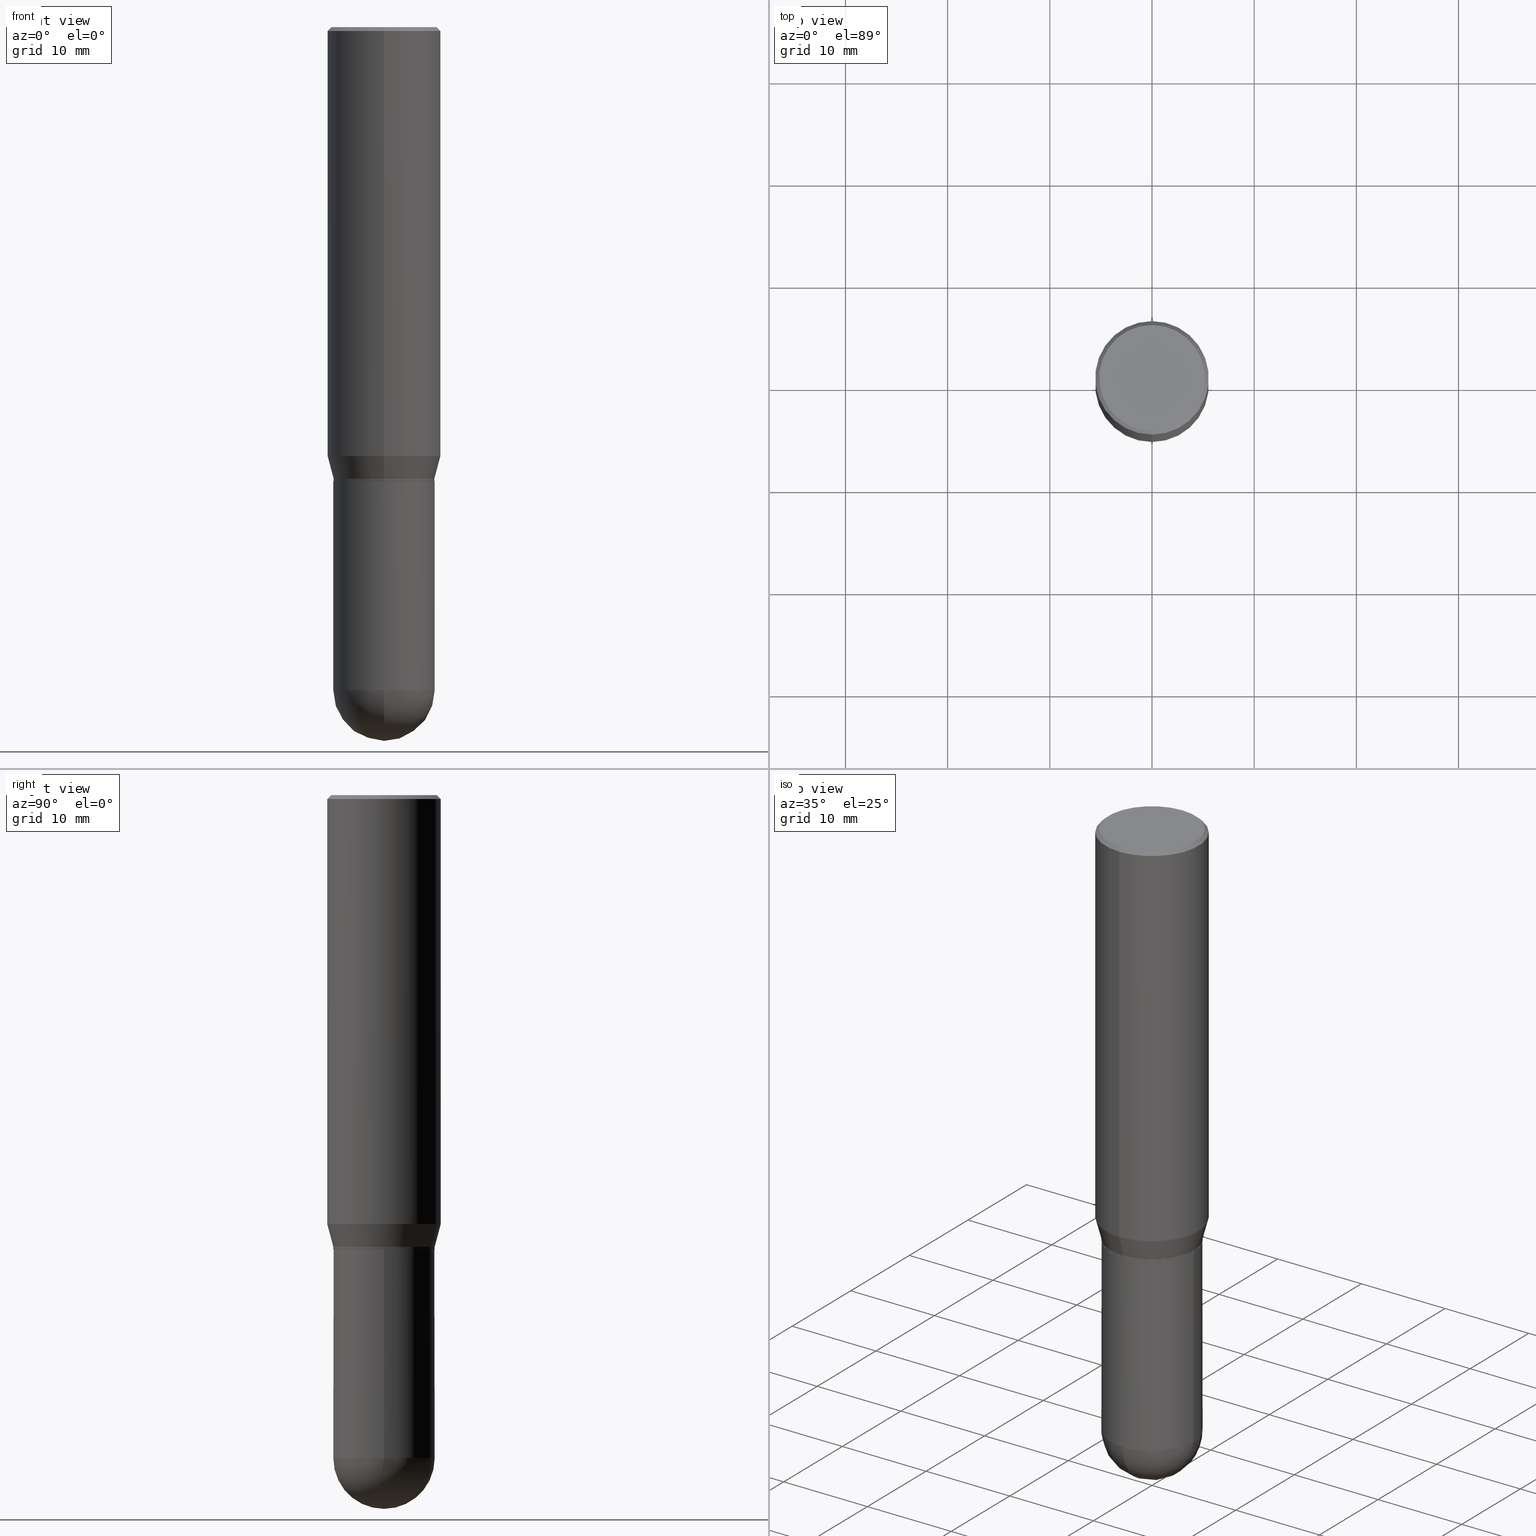
[diagram: canonical four-view strip — front | top / right | iso, engineering-drawing reading convention]
A machine part, canonical four-view strip (front | top / right | iso — engineering-drawing reading convention). The complete STEP part file that produces these views, byte-faithful:
ISO-10303-21;
HEADER;
FILE_DESCRIPTION (( 'STEP AP203' ),
    '1' );
FILE_NAME ('30055.STEP',
    '2024-03-08T15:17:19',
    ( '' ),
    ( '' ),
    'SwSTEP 2.0',
    'SolidWorks 2023',
    '' );
FILE_SCHEMA (( 'CONFIG_CONTROL_DESIGN' ));
ENDSEC;

DATA;
#1 = ORIENTED_EDGE ( 'NONE', *, *, #417, .F. ) ;
#2 = PERSON_AND_ORGANIZATION ( #326, #408 ) ;
#3 = FACE_OUTER_BOUND ( 'NONE', #59, .T. ) ;
#4 = DIRECTION ( 'NONE',  ( -2.445224538422357859E-29, 3.491831144182302259E-15, 1.000000000000000000 ) ) ;
#5 = EDGE_LOOP ( 'NONE', ( #204, #464, #263, #43 ) ) ;
#6 = PERSON_AND_ORGANIZATION ( #326, #408 ) ;
#7 = AXIS2_PLACEMENT_3D ( 'NONE', #249, #449, #50 ) ;
#8 = CARTESIAN_POINT ( 'NONE',  ( -1.387689962939413353E-15, -0.1953000000000089664, -2.554699999999999527 ) ) ;
#9 = CARTESIAN_POINT ( 'NONE',  ( -1.363772610952127300E-15, -0.1952999999999999181, 6.819546224588034390E-16 ) ) ;
#10 = EDGE_CURVE ( 'NONE', #393, #125, #422, .T. ) ;
#11 = FACE_OUTER_BOUND ( 'NONE', #383, .T. ) ;
#12 = DIRECTION ( 'NONE',  ( -2.445224538422357859E-29, 3.491831144182302259E-15, 1.000000000000000000 ) ) ;
#13 = AXIS2_PLACEMENT_3D ( 'NONE', #256, #330, #334 ) ;
#14 = ORIENTED_EDGE ( 'NONE', *, *, #76, .T. ) ;
#15 = APPROVAL ( #199, 'UNSPECIFIED' ) ;
#16 = LINE ( 'NONE', #284, #224 ) ;
#17 = ORIENTED_EDGE ( 'NONE', *, *, #60, .F. ) ;
#18 = CARTESIAN_POINT ( 'NONE',  ( -1.363772610952084702E-15, -0.1953000000000059688, -1.739999999999999547 ) ) ;
#19 = ADVANCED_FACE ( 'NONE', ( #61 ), #150, .T. ) ;
#20 = CARTESIAN_POINT ( 'NONE',  ( -1.449280202029235538E-15, -0.2037499999999999867, 5.543668214964218588E-16 ) ) ;
#21 = ORIENTED_EDGE ( 'NONE', *, *, #145, .F. ) ;
#22 = LOCAL_TIME ( 10, 17, 19.00000000000000000, #274 ) ;
#23 = FACE_OUTER_BOUND ( 'NONE', #243, .T. ) ;
#24 = EDGE_LOOP ( 'NONE', ( #495, #217, #312, #297 ) ) ;
#25 = DIRECTION ( 'NONE',  ( -2.445224538422357859E-29, 3.491831144182302653E-15, 1.000000000000000000 ) ) ;
#26 = CARTESIAN_POINT ( 'NONE',  ( 0.000000000000000000, 0.000000000000000000, 0.000000000000000000 ) ) ;
#27 = DIRECTION ( 'NONE',  ( -6.982962677686266711E-15, -1.000000000000000000, 2.804772067417107719E-15 ) ) ;
#28 = CIRCLE ( 'NONE', #460, 0.2037499999999999867 ) ;
#29 = CONICAL_SURFACE ( 'NONE', #242, 0.2187500000000000000, 0.7853981633974485010 ) ;
#30 = CARTESIAN_POINT ( 'NONE',  ( 3.667836807633575149E-31, -5.237746716273508633E-17, -0.01500000000000015730 ) ) ;
#31 = DIRECTION ( 'NONE',  ( -6.982962677686266711E-15, -1.000000000000000000, 2.797591391361254348E-15 ) ) ;
#32 = EDGE_CURVE ( 'NONE', #116, #101, #369, .T. ) ;
#33 = APPROVAL_DATE_TIME ( #391, #228 ) ;
#34 = DIRECTION ( 'NONE',  ( 2.445224538422357299E-29, -3.491831144182302653E-15, -1.000000000000000000 ) ) ;
#35 = EDGE_CURVE ( 'NONE', #318, #336, #225, .T. ) ;
#36 = PERSON_AND_ORGANIZATION ( #326, #408 ) ;
#37 = DIRECTION ( 'NONE',  ( -1.000000000000000000, 7.105427357601001070E-15, -4.926315508542082329E-29 ) ) ;
#38 = CALENDAR_DATE ( 2024, 8, 3 ) ;
#39 = FACE_OUTER_BOUND ( 'NONE', #461, .T. ) ;
#40 = ORIENTED_EDGE ( 'NONE', *, *, #300, .T. ) ;
#41 = ORIENTED_EDGE ( 'NONE', *, *, #181, .T. ) ;
#42 = DIRECTION ( 'NONE',  ( -1.000000000000000000, 6.982962677686266711E-15, -4.883557194083112901E-29 ) ) ;
#43 = ORIENTED_EDGE ( 'NONE', *, *, #137, .F. ) ;
#44 = COORDINATED_UNIVERSAL_TIME_OFFSET ( 5, 0, .BEHIND. ) ;
#45 = DIRECTION ( 'NONE',  ( -6.982962677686266711E-15, -1.000000000000000000, 3.491831144182302653E-15 ) ) ;
#46 = ADVANCED_FACE ( 'NONE', ( #183 ), #338, .T. ) ;
#47 = AXIS2_PLACEMENT_3D ( 'NONE', #88, #131, #353 ) ;
#48 = FACE_OUTER_BOUND ( 'NONE', #328, .T. ) ;
#49 = APPLICATION_CONTEXT ( 'configuration controlled 3d designs of mechanical parts and assemblies' ) ;
#50 = DIRECTION ( 'NONE',  ( -6.982962677686265133E-15, -1.000000000000000000, 3.746534391310989557E-15 ) ) ;
#51 = LINE ( 'NONE', #323, #295 ) ;
#52 = VERTEX_POINT ( 'NONE', #384 ) ;
#53 = FACE_OUTER_BOUND ( 'NONE', #5, .T. ) ;
#54 = AXIS2_PLACEMENT_3D ( 'NONE', #360, #362, #128 ) ;
#55 = ORIENTED_EDGE ( 'NONE', *, *, #76, .F. ) ;
#56 = DIMENSIONAL_EXPONENTS ( 1.000000000000000000, 0.000000000000000000, 0.000000000000000000, 0.000000000000000000, 0.000000000000000000, 0.000000000000000000, 0.000000000000000000 ) ;
#57 = CARTESIAN_POINT ( 'NONE',  ( 3.667836807633575149E-31, -5.237746716273508633E-17, -0.01500000000000015730 ) ) ;
#58 = DIRECTION ( 'NONE',  ( -2.445224538422357859E-29, 3.491831144182302259E-15, 1.000000000000000000 ) ) ;
#59 = EDGE_LOOP ( 'NONE', ( #403, #40, #456, #231, #373 ) ) ;
#60 = EDGE_CURVE ( 'NONE', #95, #299, #431, .T. ) ;
#61 = FACE_OUTER_BOUND ( 'NONE', #156, .T. ) ;
#62 = CONICAL_SURFACE ( 'NONE', #117, 0.1948000000000000287, 0.7853981633974824739 ) ;
#63 = AXIS2_PLACEMENT_3D ( 'NONE', #69, #58, #498 ) ;
#64 =( LENGTH_UNIT ( ) NAMED_UNIT ( * ) SI_UNIT ( $, .METRE. ) );
#65 = ORIENTED_EDGE ( 'NONE', *, *, #186, .F. ) ;
#66 = DIRECTION ( 'NONE',  ( -2.445468806185136597E-29, 3.491481338843145583E-15, 1.000000000000000000 ) ) ;
#67 = ORIENTED_EDGE ( 'NONE', *, *, #417, .T. ) ;
#68 = ADVANCED_FACE ( 'NONE', ( #427 ), #503, .T. ) ;
#69 = CARTESIAN_POINT ( 'NONE',  ( 4.277920329969914621E-29, -6.108958586746937238E-15, -1.749500000000000055 ) ) ;
#70 = ORIENTED_EDGE ( 'NONE', *, *, #484, .F. ) ;
#71 = VECTOR ( 'NONE', #171, 39.37007874015748143 ) ;
#72 = PRODUCT_DEFINITION_FORMATION_WITH_SPECIFIED_SOURCE ( 'ANY', '', #450, .NOT_KNOWN. ) ;
#73 = EDGE_CURVE ( 'NONE', #213, #412, #188, .T. ) ;
#74 = APPROVAL_STATUS ( 'not_yet_approved' ) ;
#75 = VERTEX_POINT ( 'NONE', #275 ) ;
#76 = EDGE_CURVE ( 'NONE', #101, #151, #370, .T. ) ;
#77 = APPROVAL_DATE_TIME ( #442, #15 ) ;
#78 = CARTESIAN_POINT ( 'NONE',  ( 3.841295513378218841E-45, -5.485449330667966736E-31, -1.570937741307224074E-16 ) ) ;
#79 = DATE_AND_TIME ( #281, #189 ) ;
#80 = DIRECTION ( 'NONE',  ( 6.982962677686266711E-15, 1.000000000000000000, -2.797591391361252376E-15 ) ) ;
#81 = CLOSED_SHELL ( 'NONE', ( #87, #192, #504, #197, #19, #446, #385, #311, #154, #316, #107, #480 ) ) ;
#82 = AXIS2_PLACEMENT_3D ( 'NONE', #169, #37, #482 ) ;
#83 = CIRCLE ( 'NONE', #314, 0.1953000000000000569 ) ;
#84 = PERSON_AND_ORGANIZATION_ROLE ( 'design_owner' ) ;
#85 = CARTESIAN_POINT ( 'NONE',  ( -1.527523085743830414E-15, -0.2187500000000058009, -1.652483408562509082 ) ) ;
#86 = EDGE_LOOP ( 'NONE', ( #153, #397, #144, #497 ) ) ;
#87 = ADVANCED_FACE ( 'NONE', ( #39 ), #405, .T. ) ;
#88 = CARTESIAN_POINT ( 'NONE',  ( 0.000000000000000000, 0.000000000000000000, 0.000000000000000000 ) ) ;
#89 = ADVANCED_FACE ( 'NONE', ( #3 ), #320, .T. ) ;
#90 = DIRECTION ( 'NONE',  ( -6.982962677686265922E-15, -1.000000000000000000, 3.491831144182302653E-15 ) ) ;
#91 = LINE ( 'NONE', #210, #71 ) ;
#92 = CONICAL_SURFACE ( 'NONE', #470, 0.1952999999999998904, 0.2617993877991504625 ) ;
#93 = DIRECTION ( 'NONE',  ( -2.445468806185136877E-29, 3.491481338843145188E-15, 1.000000000000000000 ) ) ;
#94 = CARTESIAN_POINT ( 'NONE',  ( -1.363772610952085885E-15, -0.1953000000000062186, -1.749499999999999389 ) ) ;
#95 = VERTEX_POINT ( 'NONE', #392 ) ;
#96 = DIRECTION ( 'NONE',  ( -1.807323732225331323E-15, -0.2588190451025183525, 0.9659258262890689783 ) ) ;
#97 = VECTOR ( 'NONE', #96, 39.37007874015748854 ) ;
#98 = CARTESIAN_POINT ( 'NONE',  ( -1.527523085743870449E-15, -0.2187500000000000000, 7.638380627898786315E-16 ) ) ;
#99 = ORIENTED_EDGE ( 'NONE', *, *, #211, .F. ) ;
#100 = APPLICATION_CONTEXT ( 'configuration controlled 3d designs of mechanical parts and assemblies' ) ;
#101 = VERTEX_POINT ( 'NONE', #401 ) ;
#102 = ORIENTED_EDGE ( 'NONE', *, *, #60, .T. ) ;
#103 = CARTESIAN_POINT ( 'NONE',  ( -1.500733937012521740E-15, -0.2187500000000000555, -0.01499999999999939403 ) ) ;
#104 = ORIENTED_EDGE ( 'NONE', *, *, #130, .T. ) ;
#105 = ADVANCED_BREP_SHAPE_REPRESENTATION ( '30055', ( #123, #132, #288 ), #168 ) ;
#106 = CIRCLE ( 'NONE', #82, 0.1953000000000000291 ) ;
#107 = ADVANCED_FACE ( 'NONE', ( #473 ), #143, .T. ) ;
#108 = CC_DESIGN_APPROVAL ( #110, ( #120 ) ) ;
#109 = DIRECTION ( 'NONE',  ( -2.445224538422357859E-29, 3.491831144182302259E-15, 1.000000000000000000 ) ) ;
#110 = APPROVAL ( #115, 'UNSPECIFIED' ) ;
#111 = CARTESIAN_POINT ( 'NONE',  ( 4.279142942239125763E-29, -6.110704502319029052E-15, -1.750000000000000000 ) ) ;
#112 = DIRECTION ( 'NONE',  ( -6.982962677686266711E-15, -1.000000000000000000, 2.804772067417107719E-15 ) ) ;
#113 = EDGE_LOOP ( 'NONE', ( #255, #230, #340, #310 ) ) ;
#114 = EDGE_CURVE ( 'NONE', #233, #507, #208, .T. ) ;
#115 = APPROVAL_STATUS ( 'not_yet_approved' ) ;
#116 = VERTEX_POINT ( 'NONE', #8 ) ;
#117 = AXIS2_PLACEMENT_3D ( 'NONE', #238, #396, #136 ) ;
#118 = APPROVAL_DATE_TIME ( #79, #110 ) ;
#119 = SPHERICAL_SURFACE ( 'NONE', #134, 0.1953000000000000291 ) ;
#120 = PRODUCT_DEFINITION ( 'UNKNOWN', '', #72, #139 ) ;
#121 = PERSON_AND_ORGANIZATION ( #326, #408 ) ;
#122 = DIRECTION ( 'NONE',  ( -6.982962677686265133E-15, -1.000000000000000000, 3.491831144182301864E-15 ) ) ;
#123 = MANIFOLD_SOLID_BREP ( 'Body-Move/Copy2[1]', #178 ) ;
#124 = CARTESIAN_POINT ( 'NONE',  ( 1.422778645578576487E-15, 0.2037499999999999867, -7.900074826925052850E-16 ) ) ;
#125 = VERTEX_POINT ( 'NONE', #166 ) ;
#126 = AXIS2_PLACEMENT_3D ( 'NONE', #374, #294, #491 ) ;
#127 = DATE_TIME_ROLE ( 'creation_date' ) ;
#128 = DIRECTION ( 'NONE',  ( -6.982962677686266711E-15, -1.000000000000000000, 2.804772067417107719E-15 ) ) ;
#129 = PRODUCT_RELATED_PRODUCT_CATEGORY ( 'detail', '', ( #450 ) ) ;
#130 = EDGE_CURVE ( 'NONE', #75, #336, #510, .T. ) ;
#131 = DIRECTION ( 'NONE',  ( -2.445468806185136597E-29, 3.491481338843145583E-15, 1.000000000000000000 ) ) ;
#132 = MANIFOLD_SOLID_BREP ( 'Body-Move/Copy2[2]', #81 ) ;
#133 = CARTESIAN_POINT ( 'NONE',  ( -1.363772610952084702E-15, -0.1953000000000059688, -1.739999999999999547 ) ) ;
#134 = AXIS2_PLACEMENT_3D ( 'NONE', #240, #42, #80 ) ;
#135 = VECTOR ( 'NONE', #462, 39.37007874015748143 ) ;
#136 = DIRECTION ( 'NONE',  ( -6.982962677686266711E-15, -1.000000000000000000, 2.804772067417107719E-15 ) ) ;
#137 = EDGE_CURVE ( 'NONE', #125, #448, #493, .T. ) ;
#138 = DIRECTION ( 'NONE',  ( 1.000000000000000000, -6.982962677686265922E-15, 4.883557194083112340E-29 ) ) ;
#139 = DESIGN_CONTEXT ( 'detailed design', #100, 'design' ) ;
#140 = CARTESIAN_POINT ( 'NONE',  ( 4.254690696854903488E-29, -6.075786190877206191E-15, -1.739999999999999991 ) ) ;
#141 = AXIS2_PLACEMENT_3D ( 'NONE', #185, #66, #191 ) ;
#142 = DIRECTION ( 'NONE',  ( 2.445224538422357859E-29, -3.491831144182302259E-15, -1.000000000000000000 ) ) ;
#143 = CONICAL_SURFACE ( 'NONE', #54, 0.1948000000000000287, 0.7853981633974824739 ) ;
#144 = ORIENTED_EDGE ( 'NONE', *, *, #324, .F. ) ;
#145 = EDGE_CURVE ( 'NONE', #52, #116, #106, .T. ) ;
#146 = VERTEX_POINT ( 'NONE', #194 ) ;
#147 = APPLICATION_PROTOCOL_DEFINITION ( 'international standard', 'config_control_design', 1994, #49 ) ;
#148 = ORIENTED_EDGE ( 'NONE', *, *, #331, .F. ) ;
#149 = VERTEX_POINT ( 'NONE', #85 ) ;
#150 = CONICAL_SURFACE ( 'NONE', #363, 0.1952999999999998904, 0.2617993877991504625 ) ;
#151 = VERTEX_POINT ( 'NONE', #282 ) ;
#152 = DIRECTION ( 'NONE',  ( -6.982962677686266711E-15, -1.000000000000000000, 2.797591391361254348E-15 ) ) ;
#153 = ORIENTED_EDGE ( 'NONE', *, *, #441, .T. ) ;
#154 = ADVANCED_FACE ( 'NONE', ( #283 ), #315, .F. ) ;
#155 = CARTESIAN_POINT ( 'NONE',  ( -1.527523085743870054E-15, -0.2187500000000000555, -0.01499999999999939403 ) ) ;
#156 = EDGE_LOOP ( 'NONE', ( #457, #506, #65, #272 ) ) ;
#157 = SECURITY_CLASSIFICATION_LEVEL ( 'unclassified' ) ;
#158 = DIRECTION ( 'NONE',  ( 1.000000000000000000, -6.982962677686267499E-15, 0.000000000000000000 ) ) ;
#159 = EDGE_CURVE ( 'NONE', #507, #233, #28, .T. ) ;
#160 = SECURITY_CLASSIFICATION ( '', '', #157 ) ;
#161 = PERSON_AND_ORGANIZATION_ROLE ( 'classification_officer' ) ;
#162 = CARTESIAN_POINT ( 'NONE',  ( 4.279570410823988484E-29, -6.110092342975504671E-15, -1.750000000000000000 ) ) ;
#163 = CARTESIAN_POINT ( 'NONE',  ( 6.247439159161168638E-29, -8.919687376342582955E-15, -2.554699999999999971 ) ) ;
#164 = EDGE_LOOP ( 'NONE', ( #67, #293, #400, #333, #14 ) ) ;
#165 = ADVANCED_FACE ( 'NONE', ( #509 ), #119, .T. ) ;
#166 = CARTESIAN_POINT ( 'NONE',  ( 1.554312234475259191E-15, 0.2187499999999998890, -0.01500000000000092232 ) ) ;
#167 = AXIS2_PLACEMENT_3D ( 'NONE', #57, #142, #410 ) ;
#168 =( GEOMETRIC_REPRESENTATION_CONTEXT ( 3 ) GLOBAL_UNCERTAINTY_ASSIGNED_CONTEXT ( ( #339 ) ) GLOBAL_UNIT_ASSIGNED_CONTEXT ( ( #335, #382, #298 ) ) REPRESENTATION_CONTEXT ( 'NONE', 'WORKASPACE' ) );
#169 = CARTESIAN_POINT ( 'NONE',  ( 6.252116918762979989E-29, -8.912988558351247541E-15, -2.554699999999999971 ) ) ;
#170 = CARTESIAN_POINT ( 'NONE',  ( -0.1953000000000000569, -6.127199896719566760E-15, -2.554699999999999971 ) ) ;
#171 = DIRECTION ( 'NONE',  ( 4.937700262164548831E-15, 0.7071067811865452413, -0.7071067811865497932 ) ) ;
#172 = ORIENTED_EDGE ( 'NONE', *, *, #239, .F. ) ;
#173 = CC_DESIGN_PERSON_AND_ORGANIZATION_ASSIGNMENT ( #6, #161, ( #160 ) ) ;
#174 = CIRCLE ( 'NONE', #364, 0.1953000000000000291 ) ;
#175 = CARTESIAN_POINT ( 'NONE',  ( 6.252116918762979989E-29, -8.912988558351247541E-15, -2.554699999999999971 ) ) ;
#176 = CARTESIAN_POINT ( 'NONE',  ( -1.360281129613242089E-15, -0.1948000000000061349, -1.749999999999999334 ) ) ;
#177 = DIRECTION ( 'NONE',  ( -6.982962677686265133E-15, -1.000000000000000000, 3.492862791899308071E-15 ) ) ;
#178 = CLOSED_SHELL ( 'NONE', ( #46, #68, #463, #165, #89 ) ) ;
#179 = AXIS2_PLACEMENT_3D ( 'NONE', #436, #478, #440 ) ;
#180 = EDGE_LOOP ( 'NONE', ( #358, #237 ) ) ;
#181 = EDGE_CURVE ( 'NONE', #336, #75, #250, .T. ) ;
#182 = DIRECTION ( 'NONE',  ( -2.445224538422357859E-29, 3.491831144182302259E-15, 1.000000000000000000 ) ) ;
#183 = FACE_OUTER_BOUND ( 'NONE', #164, .T. ) ;
#184 = CARTESIAN_POINT ( 'NONE',  ( 1.471001098707388140E-15, 0.1952999999999938119, -1.740000000000000657 ) ) ;
#185 = CARTESIAN_POINT ( 'NONE',  ( 6.247439159161168638E-29, -8.919687376342582955E-15, -2.554699999999999971 ) ) ;
#186 = EDGE_CURVE ( 'NONE', #149, #393, #439, .T. ) ;
#187 = DIRECTION ( 'NONE',  ( 0.000000000000000000, 0.000000000000000000, 1.000000000000000000 ) ) ;
#188 = CIRCLE ( 'NONE', #415, 0.1952999999999998904 ) ;
#189 = LOCAL_TIME ( 10, 17, 19.00000000000000000, #404 ) ;
#190 = DIRECTION ( 'NONE',  ( -6.982962677686266711E-15, -1.000000000000000000, 3.491831144182302653E-15 ) ) ;
#191 = DIRECTION ( 'NONE',  ( 1.000000000000000000, -6.982962677686266711E-15, 0.000000000000000000 ) ) ;
#192 = ADVANCED_FACE ( 'NONE', ( #471 ), #62, .T. ) ;
#193 = SHAPE_DEFINITION_REPRESENTATION ( #248, #105 ) ;
#194 = CARTESIAN_POINT ( 'NONE',  ( 1.387689962939516891E-15, 0.1952999999999937009, -1.749500000000000499 ) ) ;
#195 = COORDINATED_UNIVERSAL_TIME_OFFSET ( 5, 0, .BEHIND. ) ;
#196 = DIRECTION ( 'NONE',  ( -2.445224538422357859E-29, 3.491831144182302259E-15, 1.000000000000000000 ) ) ;
#197 = ADVANCED_FACE ( 'NONE', ( #254 ), #365, .T. ) ;
#198 = AXIS2_PLACEMENT_3D ( 'NONE', #265, #182, #112 ) ;
#199 = APPROVAL_STATUS ( 'not_yet_approved' ) ;
#200 = CARTESIAN_POINT ( 'NONE',  ( 4.279570410823988484E-29, -6.110092342975504671E-15, -1.750000000000000000 ) ) ;
#201 = EDGE_CURVE ( 'NONE', #146, #412, #16, .T. ) ;
#202 = EDGE_LOOP ( 'NONE', ( #414, #342, #172, #390 ) ) ;
#203 = DIRECTION ( 'NONE',  ( -6.982962677686265133E-15, -1.000000000000000000, 3.746534391310989557E-15 ) ) ;
#204 = ORIENTED_EDGE ( 'NONE', *, *, #10, .F. ) ;
#205 = MECHANICAL_CONTEXT ( 'NONE', #49, 'mechanical' ) ;
#206 = CARTESIAN_POINT ( 'NONE',  ( 3.841295513378218841E-45, -5.485449330667966736E-31, -1.570937741307224074E-16 ) ) ;
#207 = VECTOR ( 'NONE', #379, 39.37007874015748143 ) ;
#208 = CIRCLE ( 'NONE', #469, 0.2037499999999999867 ) ;
#209 = CARTESIAN_POINT ( 'NONE',  ( -0.1953000000000000291, -6.127199896719567549E-15, -1.750000000000000000 ) ) ;
#210 = CARTESIAN_POINT ( 'NONE',  ( 1.527523085743871040E-15, 0.2187499999999999167, -0.01500000000000092232 ) ) ;
#211 = EDGE_CURVE ( 'NONE', #262, #213, #219, .T. ) ;
#212 = CYLINDRICAL_SURFACE ( 'NONE', #500, 0.2187500000000000000 ) ;
#213 = VERTEX_POINT ( 'NONE', #18 ) ;
#214 = CONICAL_SURFACE ( 'NONE', #167, 0.2187500000000000000, 0.7853981633974485010 ) ;
#215 = CC_DESIGN_APPROVAL ( #15, ( #72 ) ) ;
#216 = DIRECTION ( 'NONE',  ( -2.445224538422357859E-29, 3.491831144182302259E-15, 1.000000000000000000 ) ) ;
#217 = ORIENTED_EDGE ( 'NONE', *, *, #411, .T. ) ;
#218 = CC_DESIGN_PERSON_AND_ORGANIZATION_ASSIGNMENT ( #36, #309, ( #120 ) ) ;
#219 = LINE ( 'NONE', #9, #511 ) ;
#220 = EDGE_LOOP ( 'NONE', ( #104, #41 ) ) ;
#221 = DIRECTION ( 'NONE',  ( 6.982962677686265133E-15, 1.000000000000000000, -3.492862791899308071E-15 ) ) ;
#222 = ORIENTED_EDGE ( 'NONE', *, *, #484, .T. ) ;
#223 = DIRECTION ( 'NONE',  ( 1.000000000000000000, -6.982962677686266711E-15, 0.000000000000000000 ) ) ;
#224 = VECTOR ( 'NONE', #447, 39.37007874015748143 ) ;
#225 = LINE ( 'NONE', #305, #207 ) ;
#226 = LENGTH_MEASURE_WITH_UNIT ( LENGTH_MEASURE( 0.02539999999999999897 ), #64 );
#227 = DIRECTION ( 'NONE',  ( 1.000000000000000000, -6.982962677686266711E-15, 4.876176775795935793E-29 ) ) ;
#228 = APPROVAL ( #74, 'UNSPECIFIED' ) ;
#229 = LINE ( 'NONE', #103, #371 ) ;
#230 = ORIENTED_EDGE ( 'NONE', *, *, #428, .T. ) ;
#231 = ORIENTED_EDGE ( 'NONE', *, *, #252, .T. ) ;
#232 = LINE ( 'NONE', #98, #135 ) ;
#233 = VERTEX_POINT ( 'NONE', #366 ) ;
#234 = AXIS2_PLACEMENT_3D ( 'NONE', #332, #451, #90 ) ;
#235 = APPROVAL_ROLE ( '' ) ;
#236 = DIRECTION ( 'NONE',  ( 1.000000000000000000, -6.982962677686266711E-15, 0.000000000000000000 ) ) ;
#237 = ORIENTED_EDGE ( 'NONE', *, *, #159, .T. ) ;
#238 = CARTESIAN_POINT ( 'NONE',  ( 4.279142942239125763E-29, -6.110704502319029052E-15, -1.750000000000000000 ) ) ;
#239 = EDGE_CURVE ( 'NONE', #448, #125, #352, .T. ) ;
#240 = CARTESIAN_POINT ( 'NONE',  ( 6.252116918762979989E-29, -8.912988558351247541E-15, -2.554699999999999971 ) ) ;
#241 = AXIS2_PLACEMENT_3D ( 'NONE', #372, #216, #177 ) ;
#242 = AXIS2_PLACEMENT_3D ( 'NONE', #30, #419, #221 ) ;
#243 = EDGE_LOOP ( 'NONE', ( #481, #222, #476, #468 ) ) ;
#244 = PERSON_AND_ORGANIZATION ( #326, #408 ) ;
#245 = ORIENTED_EDGE ( 'NONE', *, *, #73, .F. ) ;
#246 = PERSON_AND_ORGANIZATION_ROLE ( 'creator' ) ;
#247 = DIRECTION ( 'NONE',  ( 6.982962677686266711E-15, 1.000000000000000000, -2.797591391361252376E-15 ) ) ;
#248 = PRODUCT_DEFINITION_SHAPE ( 'NONE', 'NONE',  #120 ) ;
#249 = CARTESIAN_POINT ( 'NONE',  ( 4.040692979952868380E-29, -5.770193031263100651E-15, -1.652483408562509748 ) ) ;
#250 = CIRCLE ( 'NONE', #321, 0.1953000000000000291 ) ;
#251 = CIRCLE ( 'NONE', #344, 0.1952999999999998904 ) ;
#252 = EDGE_CURVE ( 'NONE', #101, #75, #418, .T. ) ;
#253 = LINE ( 'NONE', #406, #398 ) ;
#254 = FACE_OUTER_BOUND ( 'NONE', #202, .T. ) ;
#255 = ORIENTED_EDGE ( 'NONE', *, *, #201, .F. ) ;
#256 = CARTESIAN_POINT ( 'NONE',  ( 6.247439159161168638E-29, -8.919687376342582955E-15, -2.554699999999999971 ) ) ;
#257 = EDGE_LOOP ( 'NONE', ( #148, #102, #348, #386 ) ) ;
#258 = AXIS2_PLACEMENT_3D ( 'NONE', #124, #34, #350 ) ;
#259 = VECTOR ( 'NONE', #425, 39.37007874015748854 ) ;
#260 = CARTESIAN_POINT ( 'NONE',  ( 4.277920329969914621E-29, -6.108958586746937238E-15, -1.749500000000000055 ) ) ;
#261 = DIRECTION ( 'NONE',  ( -2.445224538422357859E-29, 3.491831144182302259E-15, 1.000000000000000000 ) ) ;
#262 = VERTEX_POINT ( 'NONE', #94 ) ;
#263 = ORIENTED_EDGE ( 'NONE', *, *, #474, .T. ) ;
#264 = CIRCLE ( 'NONE', #7, 0.2187500000000000000 ) ;
#265 = CARTESIAN_POINT ( 'NONE',  ( 4.279142942239125763E-29, -6.110704502319029052E-15, -1.750000000000000000 ) ) ;
#266 = CC_DESIGN_DATE_AND_TIME_ASSIGNMENT ( #276, #127, ( #120 ) ) ;
#267 = CARTESIAN_POINT ( 'NONE',  ( 0.000000000000000000, 0.000000000000000000, 0.000000000000000000 ) ) ;
#268 = DIRECTION ( 'NONE',  ( -2.445224538422357859E-29, 3.491831144182302259E-15, 1.000000000000000000 ) ) ;
#269 = DIRECTION ( 'NONE',  ( -2.445224538422357859E-29, 3.491831144182302259E-15, 1.000000000000000000 ) ) ;
#270 = ORIENTED_EDGE ( 'NONE', *, *, #201, .T. ) ;
#271 = CALENDAR_DATE ( 2024, 8, 3 ) ;
#272 = ORIENTED_EDGE ( 'NONE', *, *, #290, .F. ) ;
#273 = DIRECTION ( 'NONE',  ( 1.000000000000000000, -6.982962677686267499E-15, 0.000000000000000000 ) ) ;
#274 = COORDINATED_UNIVERSAL_TIME_OFFSET ( 5, 0, .BEHIND. ) ;
#275 = CARTESIAN_POINT ( 'NONE',  ( 0.1953000000000000291, -7.473864953927632957E-15, -1.750000000000000000 ) ) ;
#276 = DATE_AND_TIME ( #359, #494 ) ;
#277 = DIRECTION ( 'NONE',  ( -2.445224538422357859E-29, 3.491831144182302259E-15, 1.000000000000000000 ) ) ;
#278 = AXIS2_PLACEMENT_3D ( 'NONE', #313, #443, #203 ) ;
#279 = CC_DESIGN_APPROVAL ( #228, ( #160 ) ) ;
#280 = ORIENTED_EDGE ( 'NONE', *, *, #137, .T. ) ;
#281 = CALENDAR_DATE ( 2024, 8, 3 ) ;
#282 = CARTESIAN_POINT ( 'NONE',  ( 1.363772610952190606E-15, 0.1952999999999911473, -2.554700000000000415 ) ) ;
#283 = FACE_OUTER_BOUND ( 'NONE', #180, .T. ) ;
#284 = CARTESIAN_POINT ( 'NONE',  ( 1.387689962939474884E-15, 0.1952999999999999181, -6.819546224588034390E-16 ) ) ;
#285 = VECTOR ( 'NONE', #25, 39.37007874015748143 ) ;
#286 = AXIS2_PLACEMENT_3D ( 'NONE', #308, #322, #247 ) ;
#287 = AXIS2_PLACEMENT_3D ( 'NONE', #505, #302, #429 ) ;
#288 = AXIS2_PLACEMENT_3D ( 'NONE', #26, #187, #319 ) ;
#289 = CARTESIAN_POINT ( 'NONE',  ( 0.1953000000000000291, -1.363772610952128089E-15, 9.523173243129463579E-30 ) ) ;
#290 = EDGE_CURVE ( 'NONE', #213, #149, #409, .T. ) ;
#291 = DIRECTION ( 'NONE',  ( 6.982962677686266711E-15, 1.000000000000000000, 0.000000000000000000 ) ) ;
#292 = CC_DESIGN_PERSON_AND_ORGANIZATION_ASSIGNMENT ( #2, #84, ( #450 ) ) ;
#293 = ORIENTED_EDGE ( 'NONE', *, *, #35, .T. ) ;
#294 = DIRECTION ( 'NONE',  ( -2.445224538422357859E-29, 3.491831144182302259E-15, 1.000000000000000000 ) ) ;
#295 = VECTOR ( 'NONE', #488, 39.37007874015748854 ) ;
#296 = PLANE ( 'NONE',  #234 ) ;
#297 = ORIENTED_EDGE ( 'NONE', *, *, #325, .F. ) ;
#298 =( NAMED_UNIT ( * ) SI_UNIT ( $, .STERADIAN. ) SOLID_ANGLE_UNIT ( ) );
#299 = VERTEX_POINT ( 'NONE', #176 ) ;
#300 = EDGE_CURVE ( 'NONE', #318, #116, #387, .T. ) ;
#301 = ORIENTED_EDGE ( 'NONE', *, *, #145, .T. ) ;
#302 = DIRECTION ( 'NONE',  ( 2.438088387897960049E-29, -3.491481338843145188E-15, -1.000000000000000000 ) ) ;
#303 = DIRECTION ( 'NONE',  ( -2.445224538422357859E-29, 3.491831144182302259E-15, 1.000000000000000000 ) ) ;
#304 = AXIS2_PLACEMENT_3D ( 'NONE', #399, #438, #45 ) ;
#305 = CARTESIAN_POINT ( 'NONE',  ( -0.1953000000000000291, 1.387689962939475870E-15, -9.606680231267831797E-30 ) ) ;
#306 = FACE_OUTER_BOUND ( 'NONE', #220, .T. ) ;
#307 = CC_DESIGN_DATE_AND_TIME_ASSIGNMENT ( #356, #432, ( #160 ) ) ;
#308 = CARTESIAN_POINT ( 'NONE',  ( 6.252116918762979989E-29, -8.912988558351247541E-15, -2.554699999999999971 ) ) ;
#309 = PERSON_AND_ORGANIZATION_ROLE ( 'creator' ) ;
#310 = ORIENTED_EDGE ( 'NONE', *, *, #411, .F. ) ;
#311 = ADVANCED_FACE ( 'NONE', ( #11 ), #214, .T. ) ;
#312 = ORIENTED_EDGE ( 'NONE', *, *, #290, .T. ) ;
#313 = CARTESIAN_POINT ( 'NONE',  ( 4.040692979952868380E-29, -5.770193031263100651E-15, -1.652483408562509748 ) ) ;
#314 = AXIS2_PLACEMENT_3D ( 'NONE', #455, #502, #223 ) ;
#315 = PLANE ( 'NONE',  #258 ) ;
#316 = ADVANCED_FACE ( 'NONE', ( #48 ), #296, .F. ) ;
#317 = DIRECTION ( 'NONE',  ( -6.982962677686265133E-15, -1.000000000000000000, 3.491831144182301864E-15 ) ) ;
#318 = VERTEX_POINT ( 'NONE', #170 ) ;
#319 = DIRECTION ( 'NONE',  ( 1.000000000000000000, 0.000000000000000000, 0.000000000000000000 ) ) ;
#320 = CYLINDRICAL_SURFACE ( 'NONE', #47, 0.1953000000000000291 ) ;
#321 = AXIS2_PLACEMENT_3D ( 'NONE', #162, #357, #158 ) ;
#322 = DIRECTION ( 'NONE',  ( -1.000000000000000000, 6.982962677686266711E-15, -4.883557194083112901E-29 ) ) ;
#323 = CARTESIAN_POINT ( 'NONE',  ( 1.387689962939517088E-15, 0.1952999999999938119, -1.740000000000000657 ) ) ;
#324 = EDGE_CURVE ( 'NONE', #262, #146, #329, .T. ) ;
#325 = EDGE_CURVE ( 'NONE', #393, #149, #264, .T. ) ;
#326 = PERSON ( 'UNSPECIFIED', 'UNSPECIFIED', 'UNSPECIFIED', ('UNSPECIFIED'), ('UNSPECIFIED'), ('UNSPECIFIED') ) ;
#327 = CARTESIAN_POINT ( 'NONE',  ( 0.000000000000000000, 0.000000000000000000, 0.000000000000000000 ) ) ;
#328 = EDGE_LOOP ( 'NONE', ( #492, #17 ) ) ;
#329 = CIRCLE ( 'NONE', #486, 0.1952999999999999736 ) ;
#330 = DIRECTION ( 'NONE',  ( -2.445468806185136597E-29, 3.491481338843145583E-15, 1.000000000000000000 ) ) ;
#331 = EDGE_CURVE ( 'NONE', #95, #146, #253, .T. ) ;
#332 = CARTESIAN_POINT ( 'NONE',  ( 4.279142942239125763E-29, -6.110704502319029052E-15, -1.750000000000000000 ) ) ;
#333 = ORIENTED_EDGE ( 'NONE', *, *, #252, .F. ) ;
#334 = DIRECTION ( 'NONE',  ( 1.000000000000000000, -6.982962677686266711E-15, 0.000000000000000000 ) ) ;
#335 =( CONVERSION_BASED_UNIT ( 'INCH', #226 ) LENGTH_UNIT ( ) NAMED_UNIT ( #56 ) );
#336 = VERTEX_POINT ( 'NONE', #209 ) ;
#337 = PLANE ( 'NONE',  #287 ) ;
#338 = CYLINDRICAL_SURFACE ( 'NONE', #377, 0.1953000000000000291 ) ;
#339 = UNCERTAINTY_MEASURE_WITH_UNIT (LENGTH_MEASURE( 1.000000000000000082E-05 ), #335, 'distance_accuracy_value', 'NONE');
#340 = ORIENTED_EDGE ( 'NONE', *, *, #211, .T. ) ;
#341 = DIRECTION ( 'NONE',  ( -6.982962677686266711E-15, -1.000000000000000000, 2.797591391361254348E-15 ) ) ;
#342 = ORIENTED_EDGE ( 'NONE', *, *, #10, .T. ) ;
#343 = CARTESIAN_POINT ( 'NONE',  ( -1.360281129613242089E-15, -0.1948000000000061349, -1.749999999999999334 ) ) ;
#344 = AXIS2_PLACEMENT_3D ( 'NONE', #140, #109, #341 ) ;
#345 = CARTESIAN_POINT ( 'NONE',  ( 4.254690696854903488E-29, -6.075786190877206191E-15, -1.739999999999999991 ) ) ;
#346 = FACE_OUTER_BOUND ( 'NONE', #113, .T. ) ;
#347 = EDGE_LOOP ( 'NONE', ( #21, #368, #55, #426 ) ) ;
#348 = ORIENTED_EDGE ( 'NONE', *, *, #454, .T. ) ;
#349 = APPROVAL_ROLE ( '' ) ;
#350 = DIRECTION ( 'NONE',  ( 6.982962677686265922E-15, 1.000000000000000000, -3.491831144182302653E-15 ) ) ;
#351 = CALENDAR_DATE ( 2024, 8, 3 ) ;
#352 = CIRCLE ( 'NONE', #241, 0.2187500000000000000 ) ;
#353 = DIRECTION ( 'NONE',  ( 1.000000000000000000, -6.982962677686266711E-15, 4.876176775795935793E-29 ) ) ;
#354 = CIRCLE ( 'NONE', #63, 0.1952999999999999736 ) ;
#355 = EDGE_CURVE ( 'NONE', #412, #393, #51, .T. ) ;
#356 = DATE_AND_TIME ( #271, #433 ) ;
#357 = DIRECTION ( 'NONE',  ( -2.445468806185136597E-29, 3.491481338843145583E-15, 1.000000000000000000 ) ) ;
#358 = ORIENTED_EDGE ( 'NONE', *, *, #114, .T. ) ;
#359 = CALENDAR_DATE ( 2024, 8, 3 ) ;
#360 = CARTESIAN_POINT ( 'NONE',  ( 4.279142942239125763E-29, -6.110704502319029052E-15, -1.750000000000000000 ) ) ;
#361 = PERSON_AND_ORGANIZATION_ROLE ( 'design_supplier' ) ;
#362 = DIRECTION ( 'NONE',  ( -2.445224538422357859E-29, 3.491831144182302259E-15, 1.000000000000000000 ) ) ;
#363 = AXIS2_PLACEMENT_3D ( 'NONE', #430, #303, #31 ) ;
#364 = AXIS2_PLACEMENT_3D ( 'NONE', #175, #138, #291 ) ;
#365 = CYLINDRICAL_SURFACE ( 'NONE', #126, 0.2187500000000000000 ) ;
#366 = CARTESIAN_POINT ( 'NONE',  ( 1.475150865661223764E-15, 0.2037499999999999867, -8.685543697578665257E-16 ) ) ;
#367 = CARTESIAN_POINT ( 'NONE',  ( 1.554312234475258797E-15, 0.2187499999999941713, -1.652483408562510636 ) ) ;
#368 = ORIENTED_EDGE ( 'NONE', *, *, #395, .T. ) ;
#369 = CIRCLE ( 'NONE', #141, 0.1953000000000000569 ) ;
#370 = CIRCLE ( 'NONE', #477, 0.1953000000000000569 ) ;
#371 = VECTOR ( 'NONE', #388, 39.37007874015748143 ) ;
#372 = CARTESIAN_POINT ( 'NONE',  ( 3.667836807633575149E-31, -5.237746716273508633E-17, -0.01500000000000015730 ) ) ;
#373 = ORIENTED_EDGE ( 'NONE', *, *, #181, .F. ) ;
#374 = CARTESIAN_POINT ( 'NONE',  ( 0.000000000000000000, 0.000000000000000000, 0.000000000000000000 ) ) ;
#375 = FACE_OUTER_BOUND ( 'NONE', #24, .T. ) ;
#376 = EDGE_LOOP ( 'NONE', ( #466, #301, #420, #1 ) ) ;
#377 = AXIS2_PLACEMENT_3D ( 'NONE', #267, #459, #227 ) ;
#378 = CARTESIAN_POINT ( 'NONE',  ( 4.254690696854903488E-29, -6.075786190877206191E-15, -1.739999999999999991 ) ) ;
#379 = DIRECTION ( 'NONE',  ( -2.445468806185136877E-29, 3.491481338843145188E-15, 1.000000000000000000 ) ) ;
#380 = EDGE_CURVE ( 'NONE', #233, #125, #91, .T. ) ;
#381 = ORIENTED_EDGE ( 'NONE', *, *, #324, .T. ) ;
#382 =( NAMED_UNIT ( * ) PLANE_ANGLE_UNIT ( ) SI_UNIT ( $, .RADIAN. ) );
#383 = EDGE_LOOP ( 'NONE', ( #70, #496, #434, #280 ) ) ;
#384 = CARTESIAN_POINT ( 'NONE',  ( 6.738067675424772833E-29, -9.582916187833640258E-15, -2.750000000000000000 ) ) ;
#385 = ADVANCED_FACE ( 'NONE', ( #53 ), #212, .T. ) ;
#386 = ORIENTED_EDGE ( 'NONE', *, *, #428, .F. ) ;
#387 = CIRCLE ( 'NONE', #13, 0.1953000000000000569 ) ;
#388 = DIRECTION ( 'NONE',  ( -4.851104656540965064E-15, -0.7071067811865501263, -0.7071067811865449082 ) ) ;
#389 = CIRCLE ( 'NONE', #198, 0.1948000000000000287 ) ;
#390 = ORIENTED_EDGE ( 'NONE', *, *, #474, .F. ) ;
#391 = DATE_AND_TIME ( #351, #22 ) ;
#392 = CARTESIAN_POINT ( 'NONE',  ( 1.385913606100117822E-15, 0.1947999999999939225, -1.750000000000000444 ) ) ;
#393 = VERTEX_POINT ( 'NONE', #367 ) ;
#394 = APPLICATION_PROTOCOL_DEFINITION ( 'international standard', 'config_control_design', 1994, #100 ) ;
#395 = EDGE_CURVE ( 'NONE', #52, #151, #174, .T. ) ;
#396 = DIRECTION ( 'NONE',  ( -2.445224538422357859E-29, 3.491831144182302259E-15, 1.000000000000000000 ) ) ;
#397 = ORIENTED_EDGE ( 'NONE', *, *, #331, .T. ) ;
#398 = VECTOR ( 'NONE', #483, 39.37007874015748854 ) ;
#399 = CARTESIAN_POINT ( 'NONE',  ( 0.000000000000000000, 0.000000000000000000, 0.000000000000000000 ) ) ;
#400 = ORIENTED_EDGE ( 'NONE', *, *, #130, .F. ) ;
#401 = CARTESIAN_POINT ( 'NONE',  ( 0.1953000000000000569, -8.878662470611173282E-15, -2.554699999999999971 ) ) ;
#402 = CC_DESIGN_PERSON_AND_ORGANIZATION_ASSIGNMENT ( #472, #361, ( #72 ) ) ;
#403 = ORIENTED_EDGE ( 'NONE', *, *, #35, .F. ) ;
#404 = COORDINATED_UNIVERSAL_TIME_OFFSET ( 5, 0, .BEHIND. ) ;
#405 = CYLINDRICAL_SURFACE ( 'NONE', #304, 0.1952999999999999181 ) ;
#406 = CARTESIAN_POINT ( 'NONE',  ( 1.384137249260717767E-15, 0.1947999999999939225, -1.750000000000000444 ) ) ;
#407 = AXIS2_PLACEMENT_3D ( 'NONE', #111, #268, #27 ) ;
#408 = ORGANIZATION ( 'UNSPECIFIED', 'UNSPECIFIED', '' ) ;
#409 = LINE ( 'NONE', #133, #97 ) ;
#410 = DIRECTION ( 'NONE',  ( 6.982962677686265133E-15, 1.000000000000000000, -3.492862791899308071E-15 ) ) ;
#411 = EDGE_CURVE ( 'NONE', #412, #213, #251, .T. ) ;
#412 = VERTEX_POINT ( 'NONE', #184 ) ;
#413 = DIRECTION ( 'NONE',  ( -6.982962677686265922E-15, -1.000000000000000000, 2.797591391361253165E-15 ) ) ;
#414 = ORIENTED_EDGE ( 'NONE', *, *, #186, .T. ) ;
#415 = AXIS2_PLACEMENT_3D ( 'NONE', #345, #196, #475 ) ;
#416 = AXIS2_PLACEMENT_3D ( 'NONE', #465, #261, #190 ) ;
#417 = EDGE_CURVE ( 'NONE', #151, #318, #83, .T. ) ;
#418 = LINE ( 'NONE', #289, #423 ) ;
#419 = DIRECTION ( 'NONE',  ( 2.445224538422357859E-29, -3.491831144182302259E-15, -1.000000000000000000 ) ) ;
#420 = ORIENTED_EDGE ( 'NONE', *, *, #300, .F. ) ;
#421 = LINE ( 'NONE', #343, #259 ) ;
#422 = LINE ( 'NONE', #499, #285 ) ;
#423 = VECTOR ( 'NONE', #93, 39.37007874015748143 ) ;
#424 = APPROVAL_PERSON_ORGANIZATION ( #244, #15, #349 ) ;
#425 = DIRECTION ( 'NONE',  ( -4.937700262164715281E-15, -0.7071067811865691111, 0.7071067811865257013 ) ) ;
#426 = ORIENTED_EDGE ( 'NONE', *, *, #32, .F. ) ;
#427 = FACE_OUTER_BOUND ( 'NONE', #376, .T. ) ;
#428 = EDGE_CURVE ( 'NONE', #146, #262, #354, .T. ) ;
#429 = DIRECTION ( 'NONE',  ( -1.000000000000000000, 6.982962677686265922E-15, -4.876176775795935793E-29 ) ) ;
#430 = CARTESIAN_POINT ( 'NONE',  ( 4.254690696854903488E-29, -6.075786190877206191E-15, -1.739999999999999991 ) ) ;
#431 = CIRCLE ( 'NONE', #407, 0.1948000000000000287 ) ;
#432 = DATE_TIME_ROLE ( 'classification_date' ) ;
#433 = LOCAL_TIME ( 10, 17, 19.00000000000000000, #435 ) ;
#434 = ORIENTED_EDGE ( 'NONE', *, *, #380, .T. ) ;
#435 = COORDINATED_UNIVERSAL_TIME_OFFSET ( 5, 0, .BEHIND. ) ;
#436 = CARTESIAN_POINT ( 'NONE',  ( 3.667836807633575149E-31, -5.237746716273508633E-17, -0.01500000000000015730 ) ) ;
#437 = APPROVAL_ROLE ( '' ) ;
#438 = DIRECTION ( 'NONE',  ( -2.445224538422357859E-29, 3.491831144182302259E-15, 1.000000000000000000 ) ) ;
#439 = CIRCLE ( 'NONE', #278, 0.2187500000000000000 ) ;
#440 = DIRECTION ( 'NONE',  ( -6.982962677686265133E-15, -1.000000000000000000, 3.492862791899308071E-15 ) ) ;
#441 = EDGE_CURVE ( 'NONE', #299, #95, #389, .T. ) ;
#442 = DATE_AND_TIME ( #38, #487 ) ;
#443 = DIRECTION ( 'NONE',  ( -2.445224538422357859E-29, 3.491831144182302259E-15, 1.000000000000000000 ) ) ;
#444 = DIRECTION ( 'NONE',  ( -2.445468806185136597E-29, 3.491481338843145583E-15, 1.000000000000000000 ) ) ;
#445 = DIRECTION ( 'NONE',  ( -2.445224538422357859E-29, 3.491831144182302653E-15, 1.000000000000000000 ) ) ;
#446 = ADVANCED_FACE ( 'NONE', ( #375 ), #92, .T. ) ;
#447 = DIRECTION ( 'NONE',  ( -2.445224538422357859E-29, 3.491831144182302653E-15, 1.000000000000000000 ) ) ;
#448 = VERTEX_POINT ( 'NONE', #155 ) ;
#449 = DIRECTION ( 'NONE',  ( -2.445224538422357859E-29, 3.491831144182302259E-15, 1.000000000000000000 ) ) ;
#450 = PRODUCT ( '30055', '30055', '', ( #205 ) ) ;
#451 = DIRECTION ( 'NONE',  ( -2.445224538422357299E-29, 3.491831144182302653E-15, 1.000000000000000000 ) ) ;
#452 = AXIS2_PLACEMENT_3D ( 'NONE', #200, #512, #273 ) ;
#453 = APPROVAL_PERSON_ORGANIZATION ( #121, #110, #437 ) ;
#454 = EDGE_CURVE ( 'NONE', #299, #262, #421, .T. ) ;
#455 = CARTESIAN_POINT ( 'NONE',  ( 6.247439159161168638E-29, -8.919687376342582955E-15, -2.554699999999999971 ) ) ;
#456 = ORIENTED_EDGE ( 'NONE', *, *, #32, .T. ) ;
#457 = ORIENTED_EDGE ( 'NONE', *, *, #73, .T. ) ;
#458 = CYLINDRICAL_SURFACE ( 'NONE', #416, 0.1952999999999999181 ) ;
#459 = DIRECTION ( 'NONE',  ( -2.445468806185136597E-29, 3.491481338843145583E-15, 1.000000000000000000 ) ) ;
#460 = AXIS2_PLACEMENT_3D ( 'NONE', #78, #277, #122 ) ;
#461 = EDGE_LOOP ( 'NONE', ( #381, #270, #245, #99 ) ) ;
#462 = DIRECTION ( 'NONE',  ( -2.445224538422357859E-29, 3.491831144182302653E-15, 1.000000000000000000 ) ) ;
#463 = ADVANCED_FACE ( 'NONE', ( #306 ), #337, .F. ) ;
#464 = ORIENTED_EDGE ( 'NONE', *, *, #325, .T. ) ;
#465 = CARTESIAN_POINT ( 'NONE',  ( 0.000000000000000000, 0.000000000000000000, 0.000000000000000000 ) ) ;
#466 = ORIENTED_EDGE ( 'NONE', *, *, #395, .F. ) ;
#467 = PERSON_AND_ORGANIZATION ( #326, #408 ) ;
#468 = ORIENTED_EDGE ( 'NONE', *, *, #380, .F. ) ;
#469 = AXIS2_PLACEMENT_3D ( 'NONE', #206, #4, #317 ) ;
#470 = AXIS2_PLACEMENT_3D ( 'NONE', #378, #269, #152 ) ;
#471 = FACE_OUTER_BOUND ( 'NONE', #86, .T. ) ;
#472 = PERSON_AND_ORGANIZATION ( #326, #408 ) ;
#473 = FACE_OUTER_BOUND ( 'NONE', #257, .T. ) ;
#474 = EDGE_CURVE ( 'NONE', #149, #448, #232, .T. ) ;
#475 = DIRECTION ( 'NONE',  ( -6.982962677686266711E-15, -1.000000000000000000, 2.797591391361254348E-15 ) ) ;
#476 = ORIENTED_EDGE ( 'NONE', *, *, #239, .T. ) ;
#477 = AXIS2_PLACEMENT_3D ( 'NONE', #163, #444, #236 ) ;
#478 = DIRECTION ( 'NONE',  ( -2.445224538422357859E-29, 3.491831144182302259E-15, 1.000000000000000000 ) ) ;
#479 = CC_DESIGN_SECURITY_CLASSIFICATION ( #160, ( #72 ) ) ;
#480 = ADVANCED_FACE ( 'NONE', ( #346 ), #458, .T. ) ;
#481 = ORIENTED_EDGE ( 'NONE', *, *, #159, .F. ) ;
#482 = DIRECTION ( 'NONE',  ( -7.105427357601001070E-15, -1.000000000000000000, 0.000000000000000000 ) ) ;
#483 = DIRECTION ( 'NONE',  ( 5.024295867788231995E-15, 0.7071067811865739960, 0.7071067811865208164 ) ) ;
#484 = EDGE_CURVE ( 'NONE', #507, #448, #229, .T. ) ;
#485 = DIRECTION ( 'NONE',  ( -6.982962677686265133E-15, -1.000000000000000000, 3.491831144182302259E-15 ) ) ;
#486 = AXIS2_PLACEMENT_3D ( 'NONE', #260, #489, #413 ) ;
#487 = LOCAL_TIME ( 10, 17, 19.00000000000000000, #195 ) ;
#488 = DIRECTION ( 'NONE',  ( 1.839019923739601499E-15, 0.2588190451025251249, 0.9659258262890670910 ) ) ;
#489 = DIRECTION ( 'NONE',  ( -2.445224538422357859E-29, 3.491831144182302259E-15, 1.000000000000000000 ) ) ;
#490 = CC_DESIGN_PERSON_AND_ORGANIZATION_ASSIGNMENT ( #508, #246, ( #72 ) ) ;
#491 = DIRECTION ( 'NONE',  ( -6.982962677686265133E-15, -1.000000000000000000, 3.491831144182302259E-15 ) ) ;
#492 = ORIENTED_EDGE ( 'NONE', *, *, #441, .F. ) ;
#493 = CIRCLE ( 'NONE', #179, 0.2187500000000000000 ) ;
#494 = LOCAL_TIME ( 10, 17, 19.00000000000000000, #44 ) ;
#495 = ORIENTED_EDGE ( 'NONE', *, *, #355, .F. ) ;
#496 = ORIENTED_EDGE ( 'NONE', *, *, #114, .F. ) ;
#497 = ORIENTED_EDGE ( 'NONE', *, *, #454, .F. ) ;
#498 = DIRECTION ( 'NONE',  ( -6.982962677686265922E-15, -1.000000000000000000, 2.797591391361253165E-15 ) ) ;
#499 = CARTESIAN_POINT ( 'NONE',  ( 1.554312234475218762E-15, 0.2187500000000000000, -7.638380627898786315E-16 ) ) ;
#500 = AXIS2_PLACEMENT_3D ( 'NONE', #327, #12, #485 ) ;
#501 = APPROVAL_PERSON_ORGANIZATION ( #467, #228, #235 ) ;
#502 = DIRECTION ( 'NONE',  ( -2.445468806185136597E-29, 3.491481338843145583E-15, 1.000000000000000000 ) ) ;
#503 = SPHERICAL_SURFACE ( 'NONE', #286, 0.1953000000000000291 ) ;
#504 = ADVANCED_FACE ( 'NONE', ( #23 ), #29, .T. ) ;
#505 = CARTESIAN_POINT ( 'NONE',  ( 1.363772610952170687E-15, 0.1952999999999939229, -1.750000000000000444 ) ) ;
#506 = ORIENTED_EDGE ( 'NONE', *, *, #355, .T. ) ;
#507 = VERTEX_POINT ( 'NONE', #20 ) ;
#508 = PERSON_AND_ORGANIZATION ( #326, #408 ) ;
#509 = FACE_OUTER_BOUND ( 'NONE', #347, .T. ) ;
#510 = CIRCLE ( 'NONE', #452, 0.1953000000000000291 ) ;
#511 = VECTOR ( 'NONE', #445, 39.37007874015748143 ) ;
#512 = DIRECTION ( 'NONE',  ( -2.445468806185136597E-29, 3.491481338843145583E-15, 1.000000000000000000 ) ) ;
ENDSEC;
END-ISO-10303-21;
